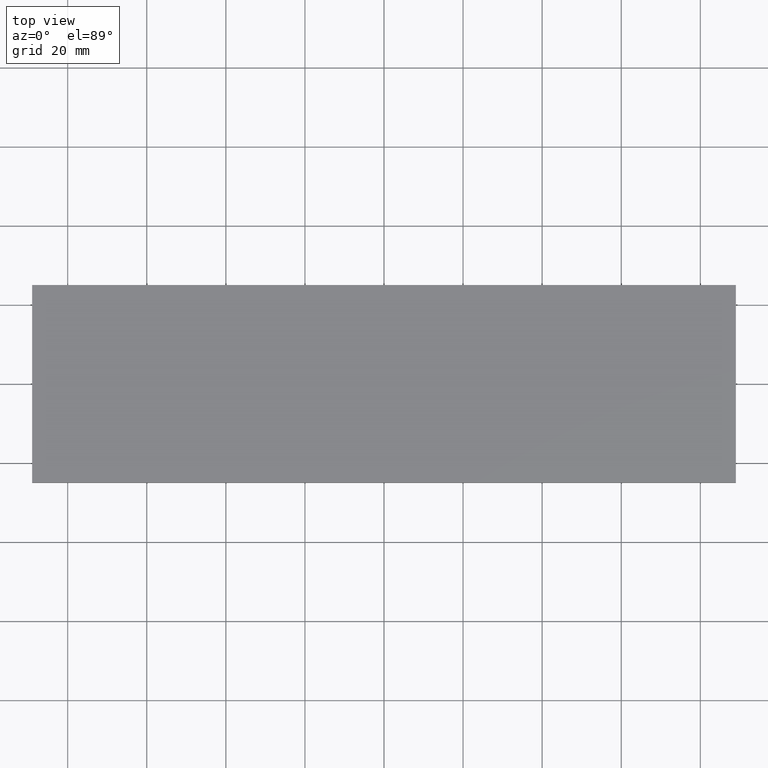
[diagram: clean part render]
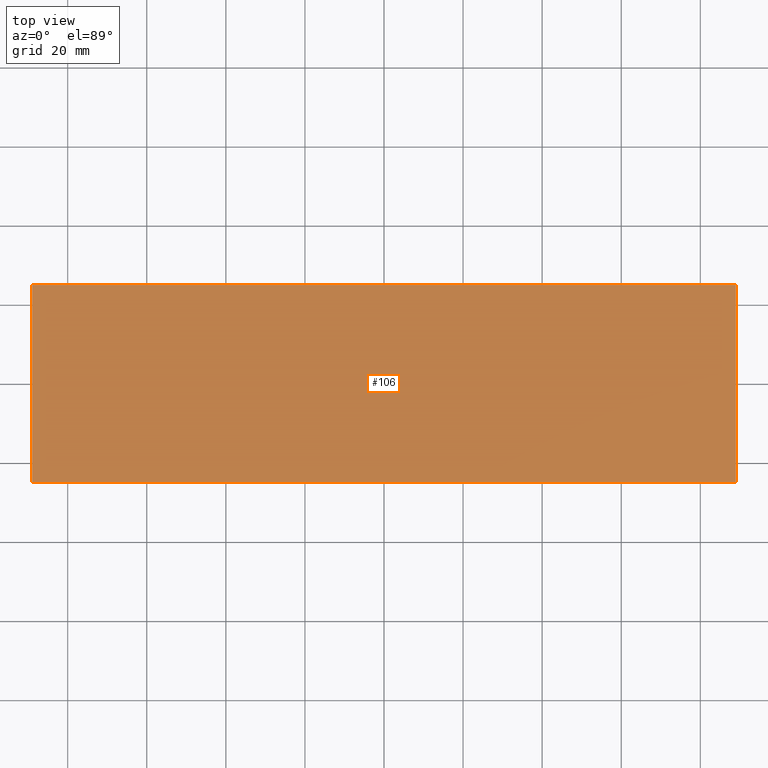
[diagram: same view with one face highlighted and labeled with its STEP entity id]
A machine part, top view. The second image highlights one B-rep face of the part: STEP entity #106.
In plain terms, the highlighted planar face has unit normal (0, 0, 1).
Its self-contained STEP definition (entity closure, byte-faithful):
#20=FACE_OUTER_BOUND('',#26,.T.);
#26=EDGE_LOOP('',(#91,#92,#93,#94));
#31=LINE('',#172,#43);
#34=LINE('',#177,#46);
#36=LINE('',#181,#48);
#38=LINE('',#184,#50);
#43=VECTOR('',#143,10.);
#46=VECTOR('',#148,10.);
#48=VECTOR('',#152,10.);
#50=VECTOR('',#156,10.);
#55=VERTEX_POINT('',#170);
#56=VERTEX_POINT('',#171);
#57=VERTEX_POINT('',#176);
#58=VERTEX_POINT('',#180);
#63=EDGE_CURVE('',#55,#56,#31,.T.);
#66=EDGE_CURVE('',#56,#57,#34,.T.);
#68=EDGE_CURVE('',#57,#58,#36,.T.);
#70=EDGE_CURVE('',#58,#55,#38,.T.);
#91=ORIENTED_EDGE('',*,*,#63,.F.);
#92=ORIENTED_EDGE('',*,*,#70,.F.);
#93=ORIENTED_EDGE('',*,*,#68,.F.);
#94=ORIENTED_EDGE('',*,*,#66,.F.);
#100=PLANE('',#132);
#106=ADVANCED_FACE('',(#20),#100,.T.);
#132=AXIS2_PLACEMENT_3D('',#185,#157,#158);
#143=DIRECTION('',(0.,1.,0.));
#148=DIRECTION('',(1.,1.74641824098339E-16,0.));
#152=DIRECTION('',(0.,-1.,0.));
#156=DIRECTION('',(-1.,0.,0.));
#157=DIRECTION('center_axis',(0.,0.,1.));
#158=DIRECTION('ref_axis',(1.,0.,0.));
#170=CARTESIAN_POINT('',(-89.,-25.,3.));
#171=CARTESIAN_POINT('',(-89.,25.,3.));
#172=CARTESIAN_POINT('',(-89.,25.,3.));
#176=CARTESIAN_POINT('',(89.,25.,3.));
#177=CARTESIAN_POINT('',(89.,25.,3.));
#180=CARTESIAN_POINT('',(89.,-25.,3.));
#181=CARTESIAN_POINT('',(89.,-25.,3.));
#184=CARTESIAN_POINT('',(-89.,-25.,3.));
#185=CARTESIAN_POINT('Origin',(6.66133814775094E-15,6.66133814775094E-15,
3.));